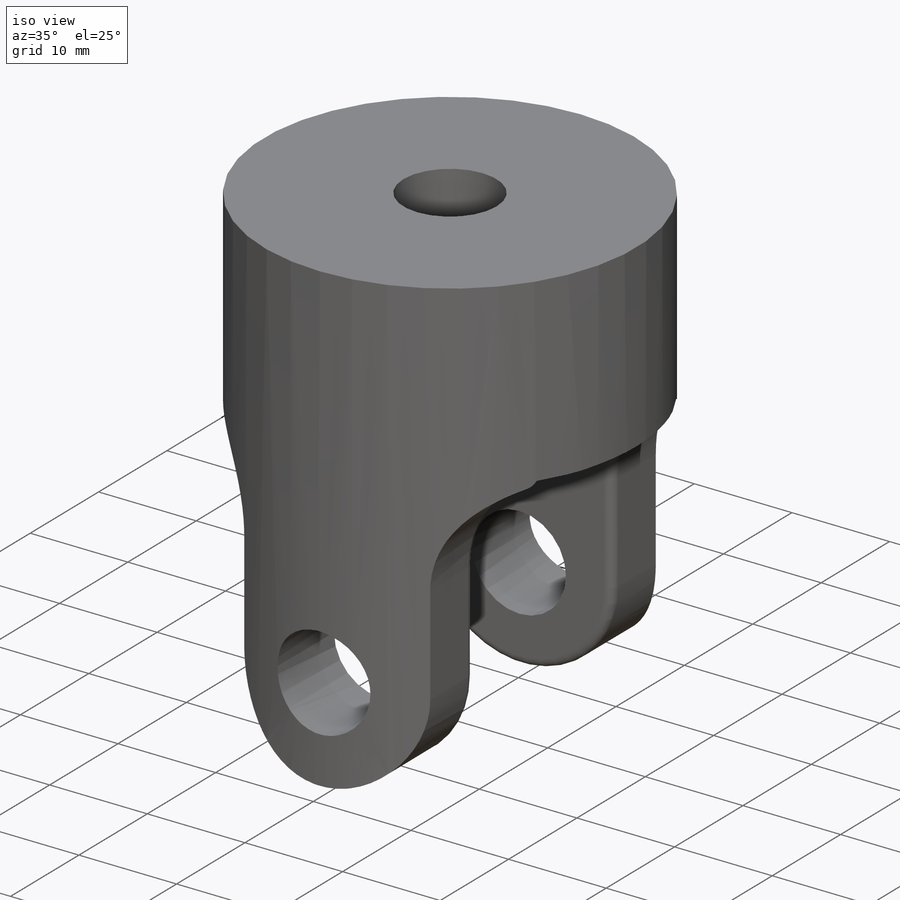
[diagram: iso view]
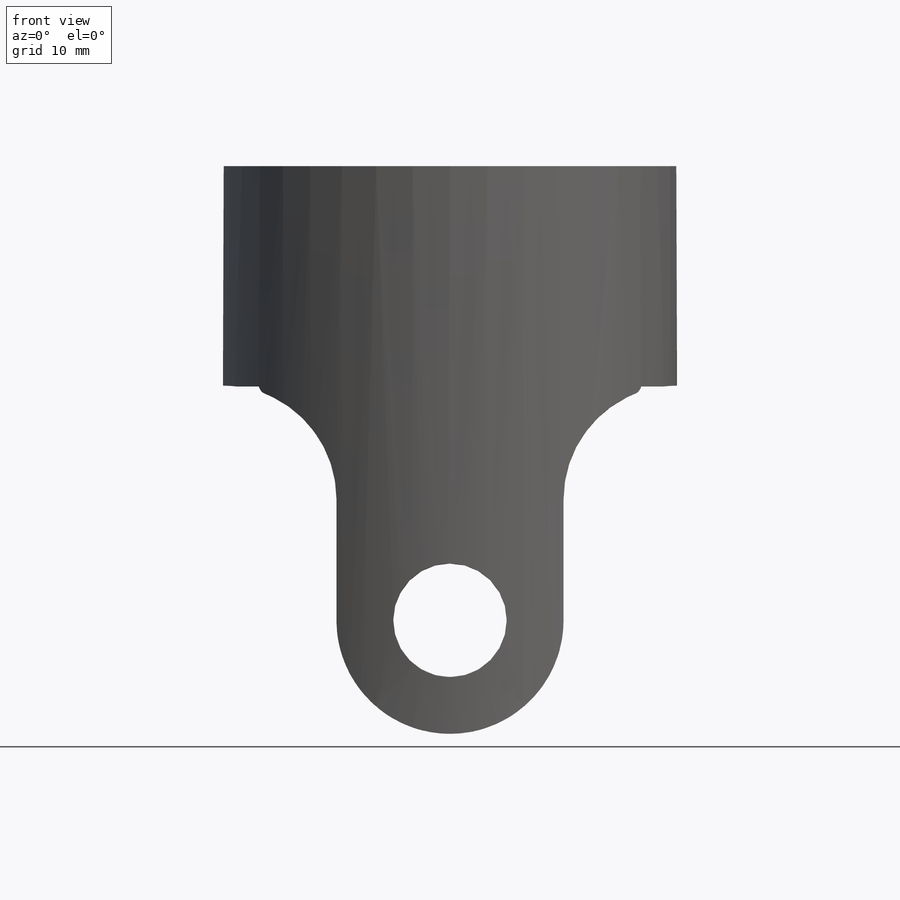
[diagram: front view]
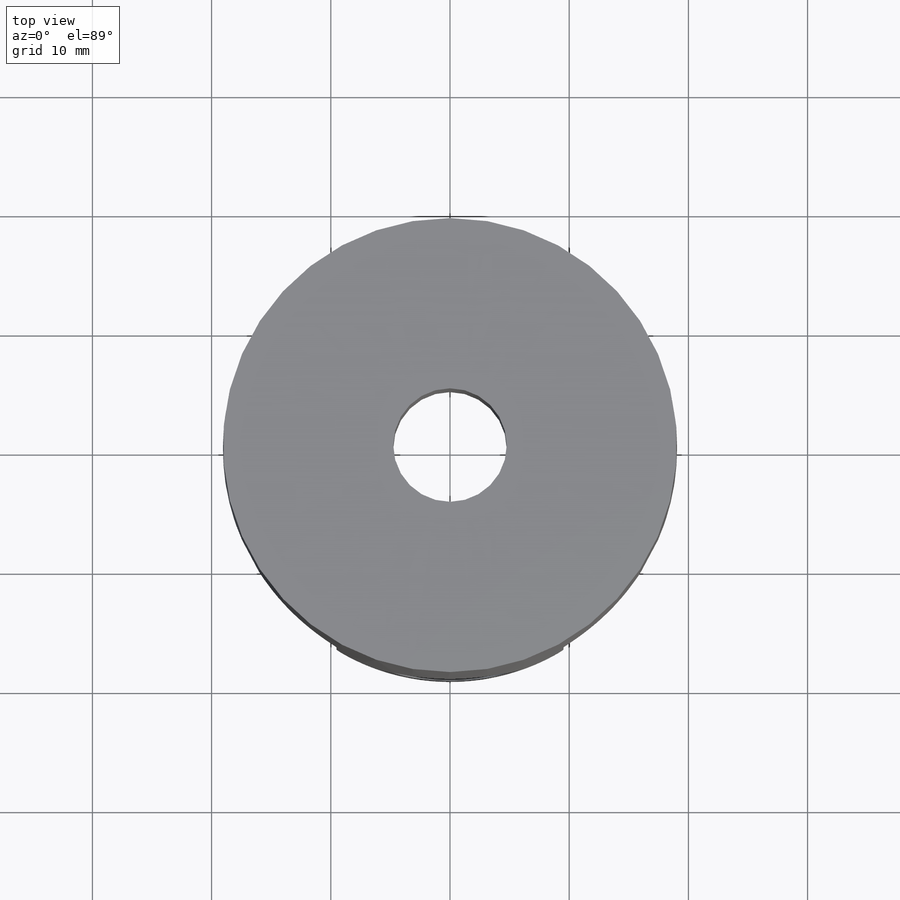
[diagram: top view]
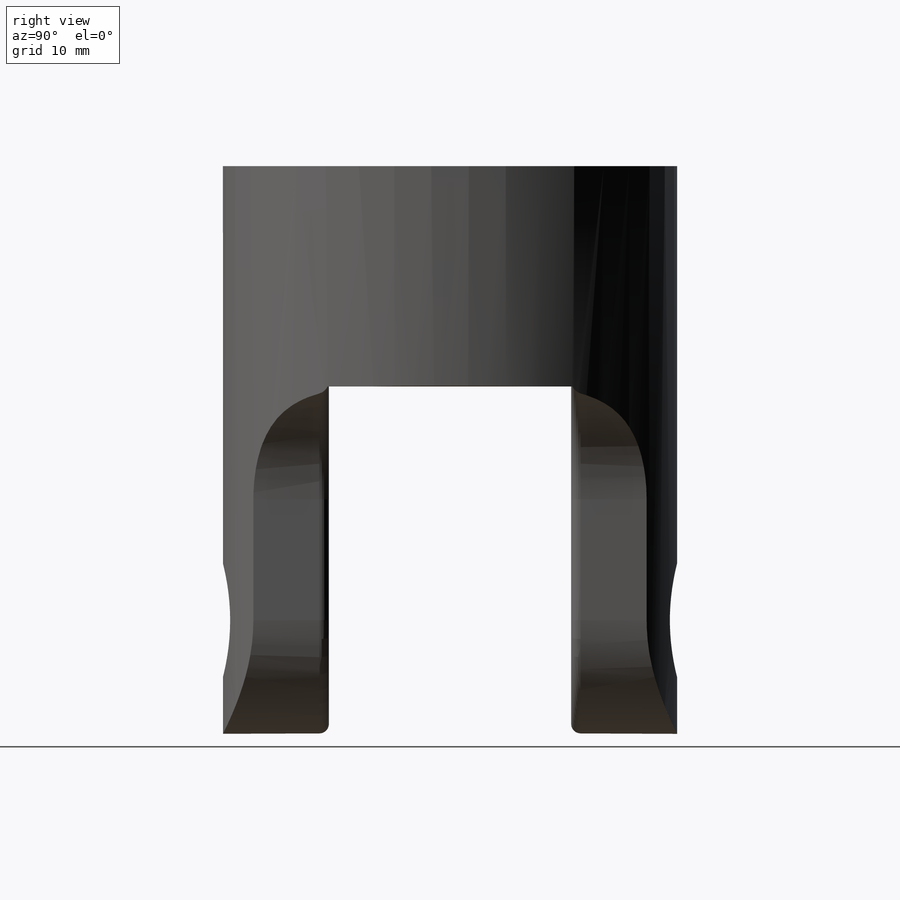
[diagram: right view]
SOLIDWORKS PART (.sldprt)
format: sldprt  version: not decoded by parser v0  size: 211,968 bytes
history: native  units: mm
features: sketch x5, cut_extrude x4, material x1, extrude x1, fillet x1 (+12 scaffold rows collapsed)
feature tree (24):
  scaffold x12  (default folders/planes/origin — collapsed)
  material  "Material <not specified>"
  sketch  "Sketch1"  dims[D1=38.1mm]
  extrude  "Base-Extrude"  Depth=47.625mm
  sketch  "Sketch2"  dims[c1.D3=9.525mm c1.D1=38.1mm c1.D2=19.05mm c2.D3=~29.574791mm c2.D4=29.21mm]
  cut_extrude  "Cut-Extrude1"  [1 undecoded]
  sketch  "Sketch8"  dims[c1.D1=~36.600526mm c1.D2=~36.600526mm c2.D1=10.16mm c2.D2=20.32mm]
  cut_extrude  "Cut-Extrude5"  Depth=47.625mm
  fillet  "Fillet1"  Radius=0.8001mm
  sketch  "Sketch11"  dims[D1=9.525mm D2=~9.574271mm]
  cut_extrude  "Cut-Extrude6"  [1 undecoded]
  sketch  "Sketch12"  dims[D1=9.525mm]
  cut_extrude  "Cut-Extrude7"  [1 undecoded]
decode coverage: 8 of 11 modeling features carry decoded parameters
note: ~ marks probable driven/reference dimensions
note: 3 parameter values undecoded
summary: no parameter record found for 3 features
note: suppression state not decoded; provenance and decode notes live in map.json
